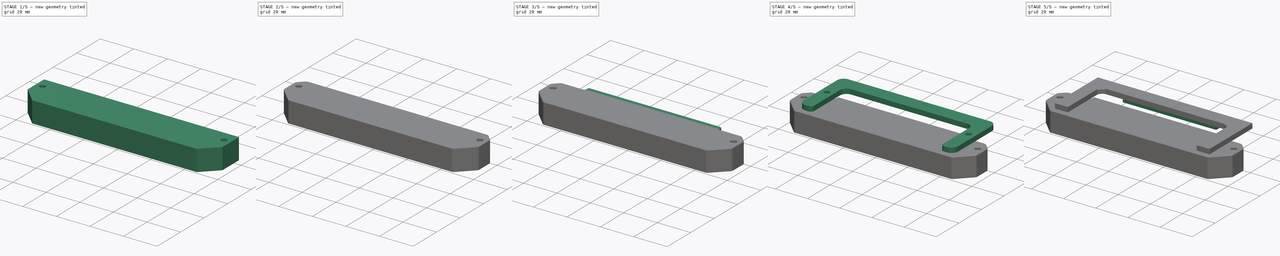
[diagram: build sequence overview — one tinted view per stage of 5, left to right]
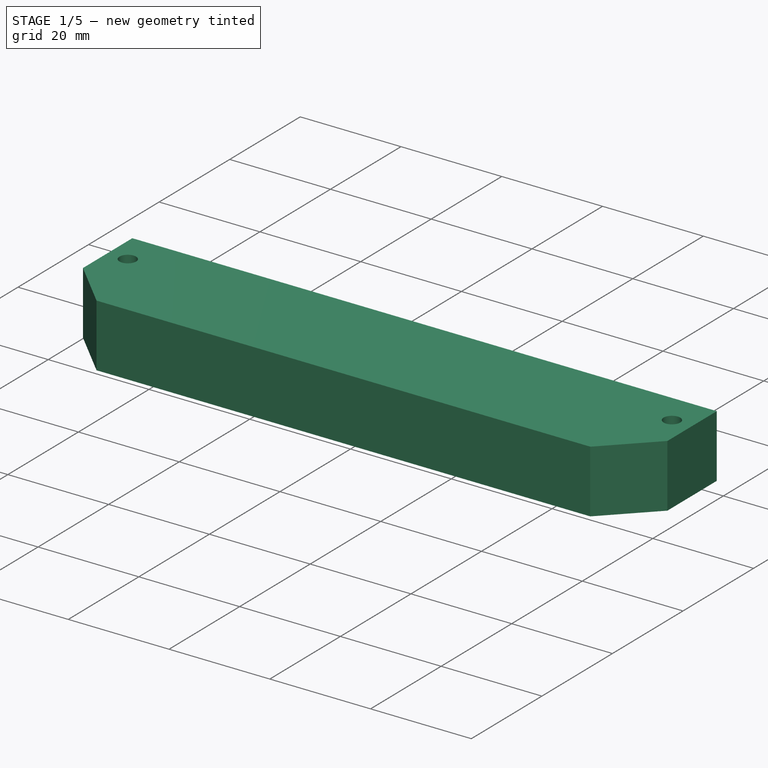
[diagram: stage 1 of 5 — iso view after this stage's code; geometry added in this stage tinted green]
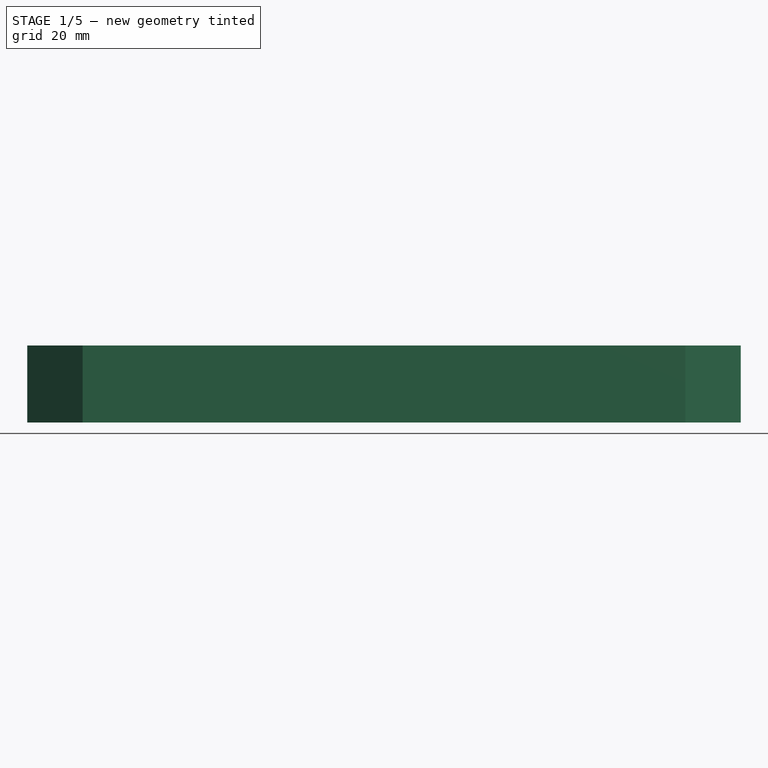
[diagram: stage 1 of 5 — front view after this stage's code; geometry added in this stage tinted green]
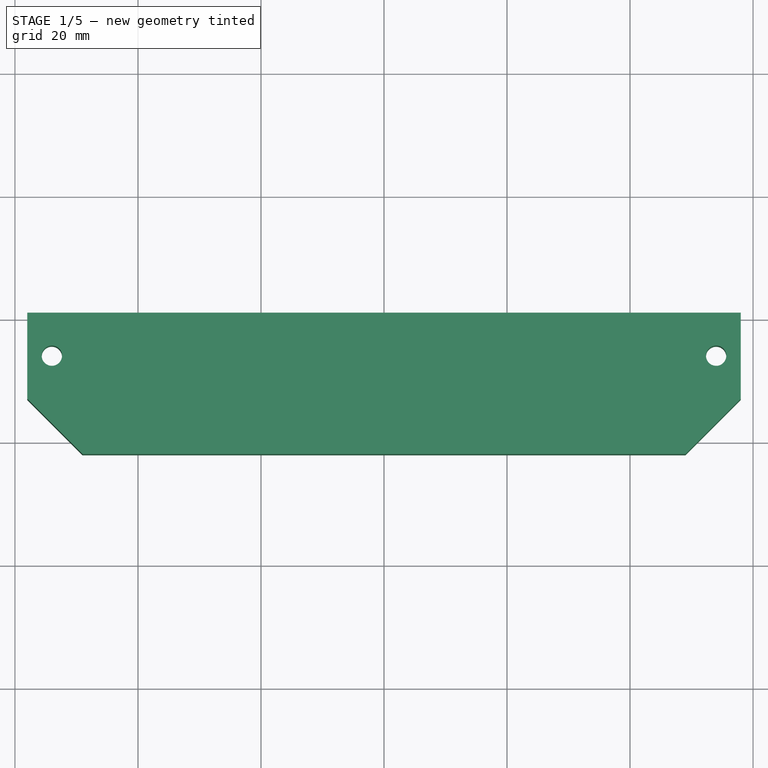
[diagram: stage 1 of 5 — top view after this stage's code; geometry added in this stage tinted green]
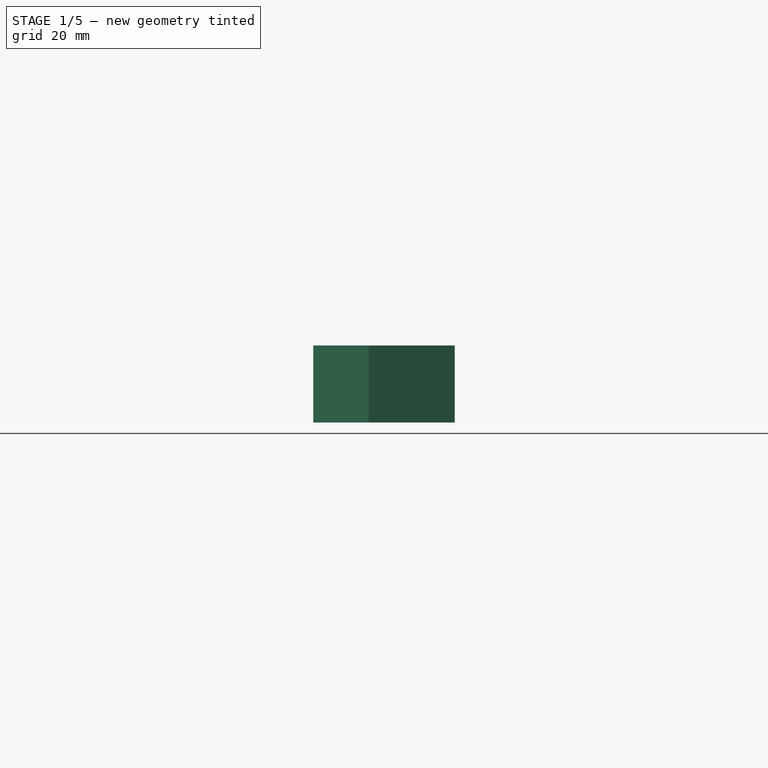
[diagram: stage 1 of 5 — right view after this stage's code; geometry added in this stage tinted green]
FCSTD DOCUMENT  (FreeCAD 0.19R24291 (Git))
Label: fuse-box-mounter-smd
License: All rights reserved
LicenseURL: http://en.wikipedia.org/wiki/All_rights_reserved
objects: Sketcher::SketchObject×7, PartDesign::Fillet×7, PartDesign::Pad×4, PartDesign::Chamfer×4, PartDesign::Body×4, PartDesign::Pocket×3, PartDesign::FeatureBase×2, App::Part×2, Part::Feature×1
note: 50 computed .brp shape members not serialized (recipe doc carries the construction recipe); baked Part::Feature solids carry a one-line shape summary decoded from their .brp

FEATURE [PartDesign::Body] Body  label="bottom"
  Group = -> [Sketch,Pad,Sketch001,Sketch004,Pocket,Fillet,Fillet001,Chamfer]
  Origin = -> Origin
  Tip = -> Chamfer
FEATURE [PartDesign::Pad] Pad002
  Direction = (1,1,1)
  Length = 12.5
  Length2 = 100
  Profile = -> Sketch003
  Reversed = true
  Type = 0
FEATURE [Sketcher::SketchObject] Sketch005
  FullyConstrained = true
  MapMode = 5
  Placement = pos=(0,0,-12.5) rot=(1,0,0;3.14159rad)
  Support = -> [Pad002]
  sketch-geometry (4):
    g0: LineSegment StartX=-48.15 StartY=0 StartZ=0 EndX=48.15 EndY=0 EndZ=0
    g1: LineSegment StartX=48.15 StartY=0 StartZ=0 EndX=48.15 EndY=19.15 EndZ=0
    g2: LineSegment StartX=48.15 StartY=19.15 StartZ=0 EndX=-48.15 EndY=19.15 EndZ=0
    g3: LineSegment StartX=-48.15 StartY=19.15 StartZ=0 EndX=-48.15 EndY=0 EndZ=0
  constraints (12):
    c: Coincident(g0,g1)
    c: Coincident(g1,g2)
    c: Coincident(g2,g3)
    c: Coincident(g3,g0)
    c: Horizontal(g0)
    c: Horizontal(g2)
    c: Vertical(g1)
    c: Vertical(g3)
    c: PointOnObject(g0,g-1)
    c: DistanceX(g2,g2) = 96.3
    c: DistanceX(g2,g-1) = 48.15
    c: DistanceY(g-1,g2) = 19.15
FEATURE [PartDesign::Pocket] Pocket001
  BaseFeature = -> Pad002
  Length = 9.5
  Length2 = 100
  Profile = -> Sketch005
  Type = 0
FEATURE [PartDesign::Body] Pad001Body
  BaseFeature = -> Body
  Group = -> [BaseFeature]
  Origin = -> Origin003
  Tip = -> BaseFeature
FEATURE [App::Part] Part
  Group = -> [Pad001Body]
  Origin = -> Origin002
FEATURE [Sketcher::SketchObject] Sketch006
  FullyConstrained = true
  MapMode = 5
  Placement = pos=(0,1,0) rot=(0,0.707107,0.707107;3.14159rad)
  Support = -> [Pocket001]
  sketch-geometry (8):
    g0: LineSegment StartX=-48.15 StartY=-12.5 StartZ=0 EndX=48.15 EndY=-12.5 EndZ=0
    g1: LineSegment StartX=48.15 StartY=-12.5 StartZ=0 EndX=48.15 EndY=-4.5 EndZ=0
    g2: LineSegment StartX=-48.15 StartY=-4.5 StartZ=0 EndX=-48.15 EndY=-12.5 EndZ=0
    g3: LineSegment StartX=-48.15 StartY=-4.5 StartZ=0 EndX=-40.5 EndY=-4.5 EndZ=0
    g4: LineSegment StartX=-40.5 StartY=-4.5 StartZ=0 EndX=-40.5 EndY=-7.5 EndZ=0
    g5: LineSegment StartX=-40.5 StartY=-7.5 StartZ=0 EndX=40.5 EndY=-7.5 EndZ=0
    g6: LineSegment StartX=40.5 StartY=-7.5 StartZ=0 EndX=40.5 EndY=-4.5 EndZ=0
    g7: LineSegment StartX=40.5 StartY=-4.5 StartZ=0 EndX=48.15 EndY=-4.5 EndZ=0
  constraints (24):
    c: Coincident(g0,g1)
    c: Coincident(g2,g0)
    c: Horizontal(g0)
    c: Vertical(g1)
    c: Vertical(g2)
    c: DistanceX(g2,g1) = 96.3
    c: DistanceX(g2,g-1) = 48.15
    c: DistanceY(g0,g-1) = 12.5
    c: DistanceY(g2,g2) = 8
    c: Horizontal(g2,g1)
    c: Coincident(g2,g3)
    c: Horizontal(g3)
    c: Coincident(g3,g4)
    c: Vertical(g4)
    c: Coincident(g4,g5)
    c: Horizontal(g5)
    c: Coincident(g5,g6)
    c: Vertical(g6)
    c: Coincident(g6,g7)
    c: Coincident(g7,g1)
    c: Horizontal(g7)
    c: DistanceY(g0,g4) = 5
    c: DistanceX(g3,g-1) = 40.5
    c: DistanceX(g-1,g6) = 40.5
FEATURE [PartDesign::Pocket] Pocket002
  BaseFeature = -> Pocket001
  Length = 5
  Length2 = 100
  Profile = -> Sketch006
  Type = 0
FEATURE [PartDesign::Chamfer] Chamfer001
  Angle = 45
  Base = -> Pocket002 [Edge18,Edge44]
  BaseFeature = -> Pocket002
  ChamferType = 0
  FlipDirection = false
  Size = 9
  Size2 = 1
  SupportTransform = false
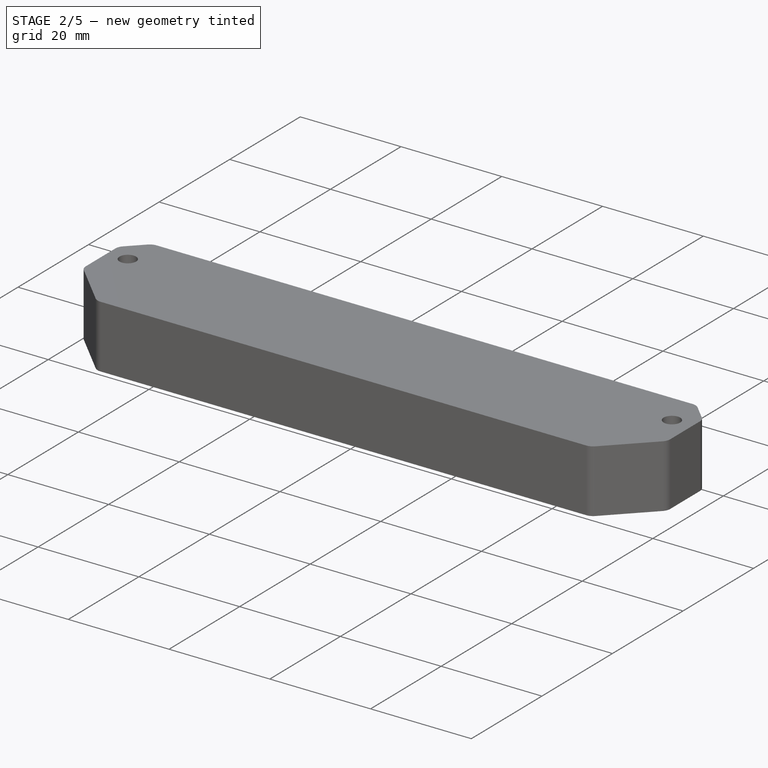
[diagram: stage 2 of 5 — iso view after this stage's code; geometry added in this stage tinted green]
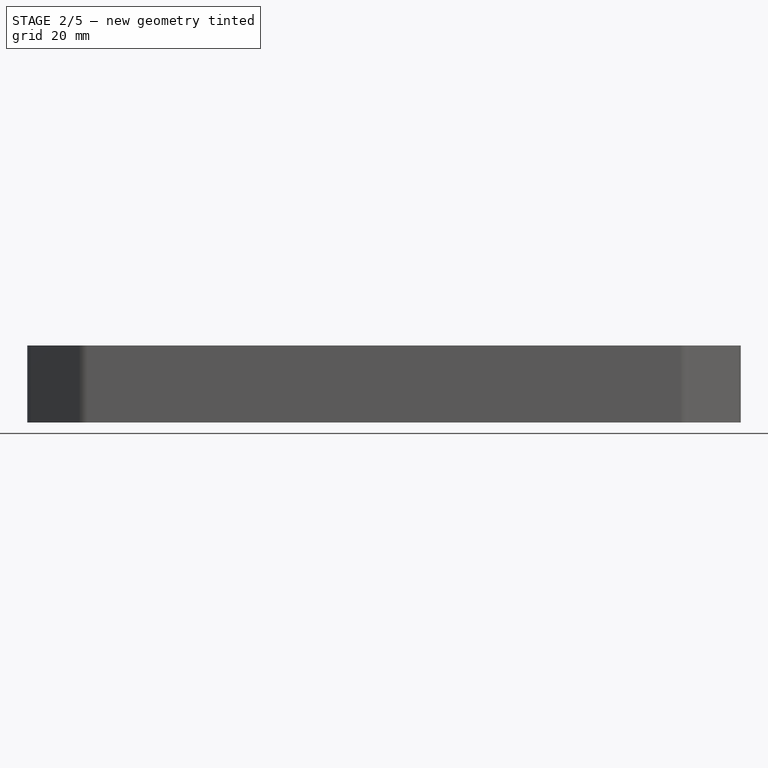
[diagram: stage 2 of 5 — front view after this stage's code; geometry added in this stage tinted green]
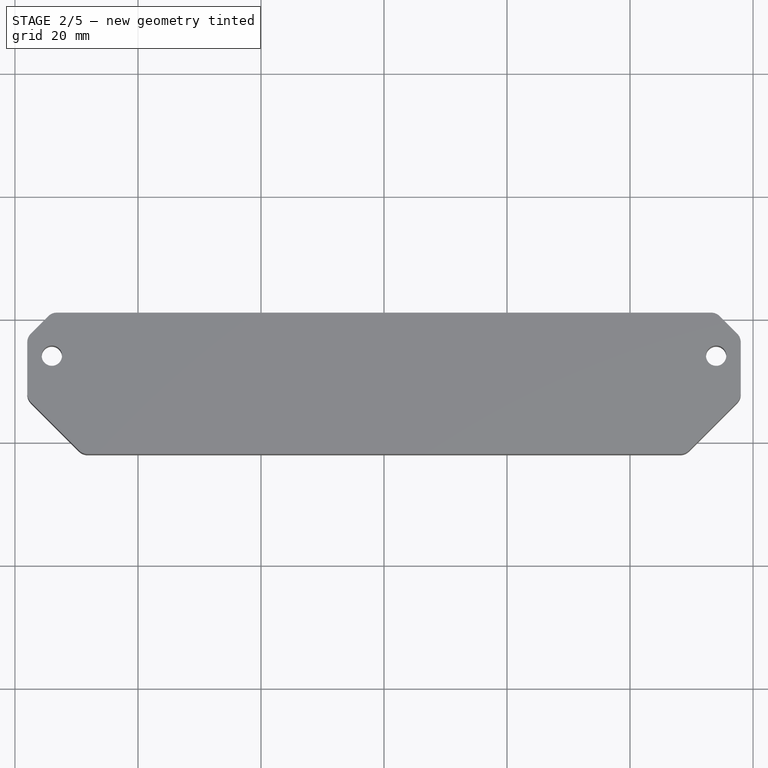
[diagram: stage 2 of 5 — top view after this stage's code; geometry added in this stage tinted green]
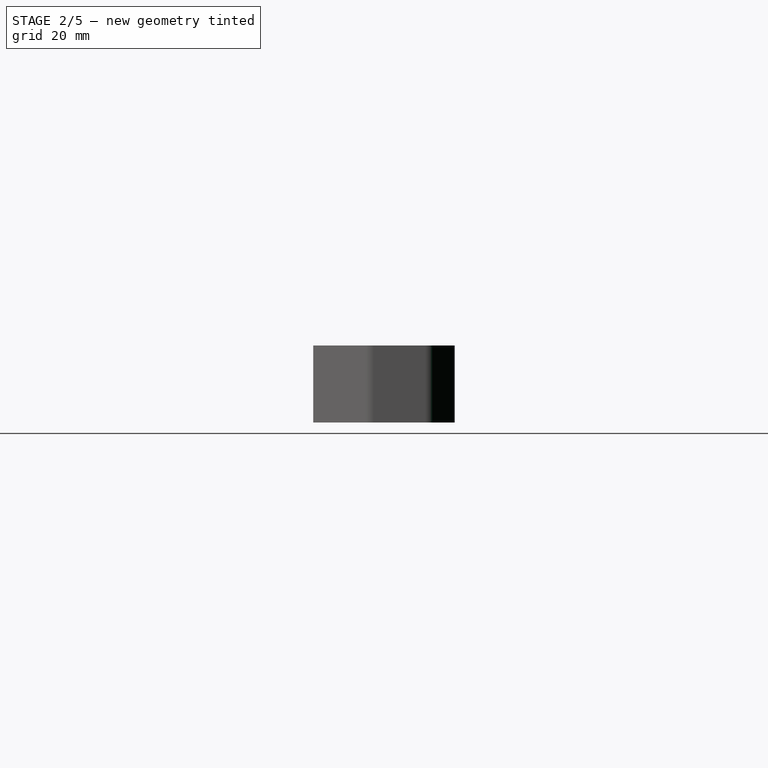
[diagram: stage 2 of 5 — right view after this stage's code; geometry added in this stage tinted green]
FEATURE [PartDesign::Fillet] Fillet002
  Base = -> Chamfer001 [Edge58,Edge57]
  BaseFeature = -> Chamfer001
  Radius = 4
  SupportTransform = false
FEATURE [PartDesign::Chamfer] Chamfer002
  Angle = 45
  Base = -> Fillet002 [Edge34,Edge41]
  BaseFeature = -> Fillet002
  ChamferType = 0
  FlipDirection = false
  Size = 4
  Size2 = 1
  SupportTransform = false
FEATURE [PartDesign::Fillet] Fillet003
  Base = -> Chamfer002 [Edge23,Edge53,Edge49,Edge45,Edge40,Edge36,Edge32,Edge22]
  BaseFeature = -> Chamfer002
  Radius = 2
  SupportTransform = false
FEATURE [PartDesign::Fillet] Fillet004
  Base = -> Fillet003 [Edge96,Edge97]
  BaseFeature = -> Fillet003
  Radius = 1
  Refine = true
  SupportTransform = false
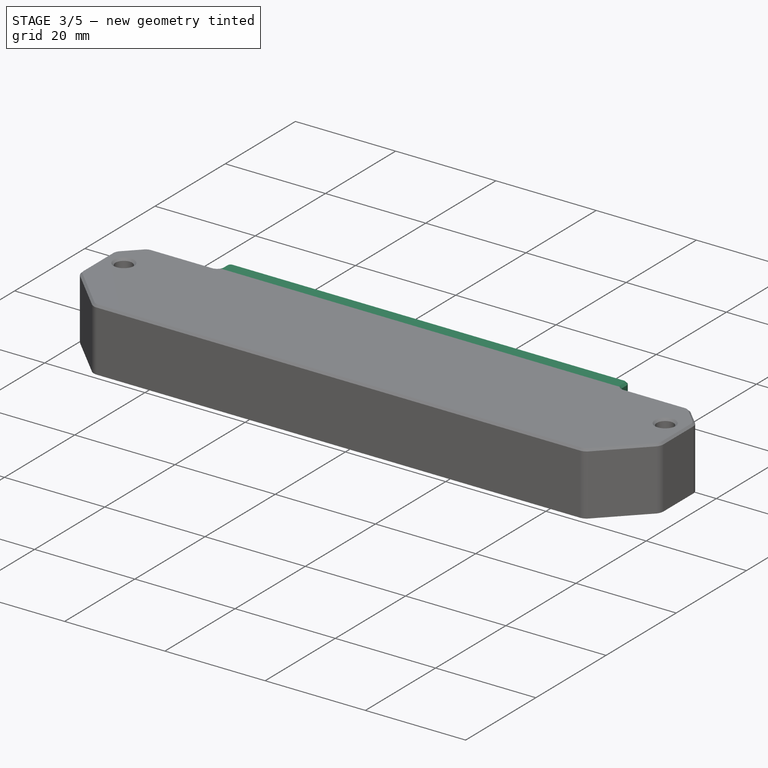
[diagram: stage 3 of 5 — iso view after this stage's code; geometry added in this stage tinted green]
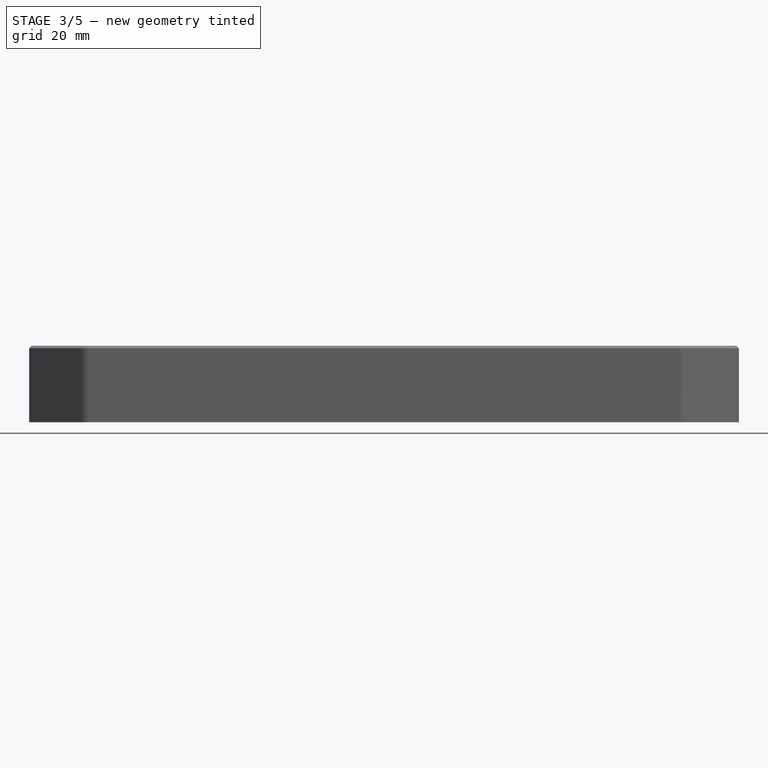
[diagram: stage 3 of 5 — front view after this stage's code; geometry added in this stage tinted green]
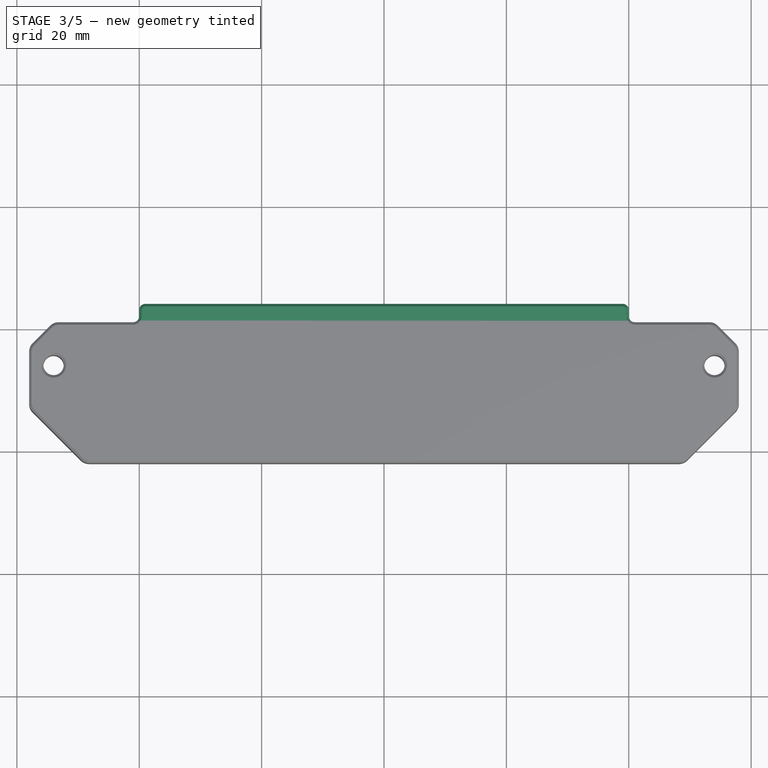
[diagram: stage 3 of 5 — top view after this stage's code; geometry added in this stage tinted green]
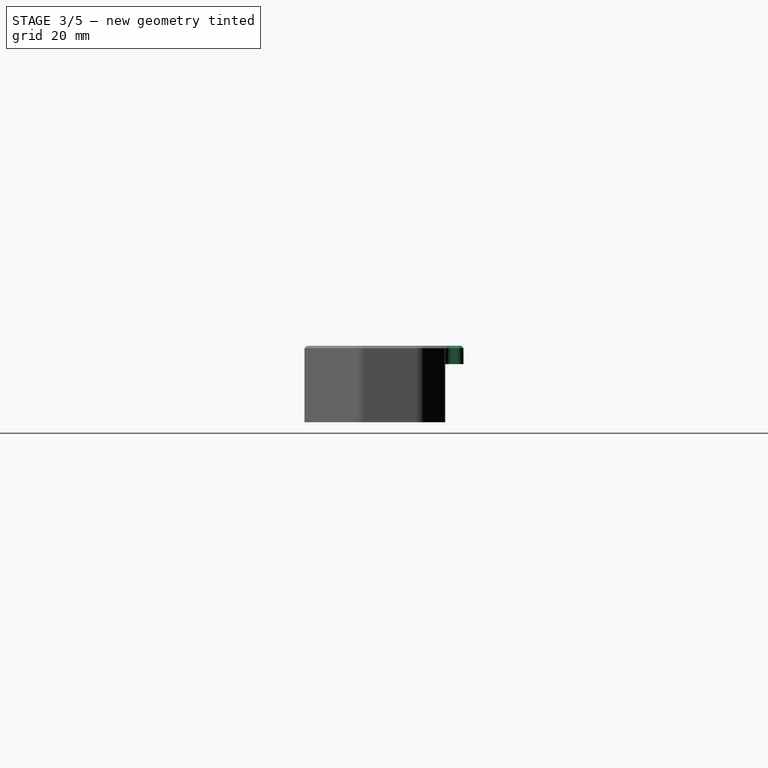
[diagram: stage 3 of 5 — right view after this stage's code; geometry added in this stage tinted green]
FEATURE [PartDesign::Fillet] Fillet005
  Base = -> Fillet004 [Edge53,Edge48,Edge20,Edge16]
  BaseFeature = -> Fillet004
  Radius = 1.5
  SupportTransform = false
FEATURE [PartDesign::Body] Pad001Body001
  BaseFeature = -> Body
  Group = -> [BaseFeature001]
  Origin = -> Origin005
  Tip = -> BaseFeature001
FEATURE [App::Part] Part001
  Group = -> [Pad001Body001]
  Origin = -> Origin004
FEATURE [Sketcher::SketchObject] Sketch007
  FullyConstrained = true
  MapMode = 5
  Placement = pos=(0,1,0) rot=(0,0.707107,0.707107;3.14159rad)
  Support = -> [Fillet005]
  sketch-geometry (4):
    g0: LineSegment StartX=-40 StartY=0 StartZ=0 EndX=40 EndY=0 EndZ=0
    g1: LineSegment StartX=40 StartY=0 StartZ=0 EndX=40 EndY=-3 EndZ=0
    g2: LineSegment StartX=40 StartY=-3 StartZ=0 EndX=-40 EndY=-3 EndZ=0
    g3: LineSegment StartX=-40 StartY=-3 StartZ=0 EndX=-40 EndY=0 EndZ=0
  constraints (12):
    c: Coincident(g0,g1)
    c: Coincident(g1,g2)
    c: Coincident(g2,g3)
    c: Coincident(g3,g0)
    c: Horizontal(g0)
    c: Horizontal(g2)
    c: Vertical(g1)
    c: Vertical(g3)
    c: PointOnObject(g0,g-1)
    c: DistanceY(g1,g1) = 3
    c: DistanceX(g2,g2) = 80
    c: DistanceX(g0,g-1) = 40
FEATURE [PartDesign::Pad] Pad003
  BaseFeature = -> Fillet005
  Direction = (1,1,1)
  Length = 3
  Length2 = 100
  Profile = -> Sketch007
  Refine = true
  Type = 0
FEATURE [PartDesign::Fillet] Fillet006
  Base = -> Pad003 [Edge63,Edge10,Edge59,Edge8]
  BaseFeature = -> Pad003
  Radius = 1
  SupportTransform = false
FEATURE [PartDesign::Chamfer] Chamfer003
  Angle = 45
  Base = -> Fillet006 [Face2,Edge78,Edge79]
  BaseFeature = -> Fillet006
  ChamferType = 0
  FlipDirection = false
  Size = 0.4
  Size2 = 1
  SupportTransform = false
FEATURE [PartDesign::Body] Body001  label="top"
  Group = -> [Sketch003,Pad002,Sketch005,Pocket001,Sketch006,Pocket002,Chamfer001,Fillet002,Chamfer002,Fillet003,Fillet004,Fillet005,Sketch007,Pad003,Fillet006,Chamfer003]
  Origin = -> Origin001
  Placement = pos=(0,0,12.5) rot=(0,0,1;0rad)
  Tip = -> Chamfer003
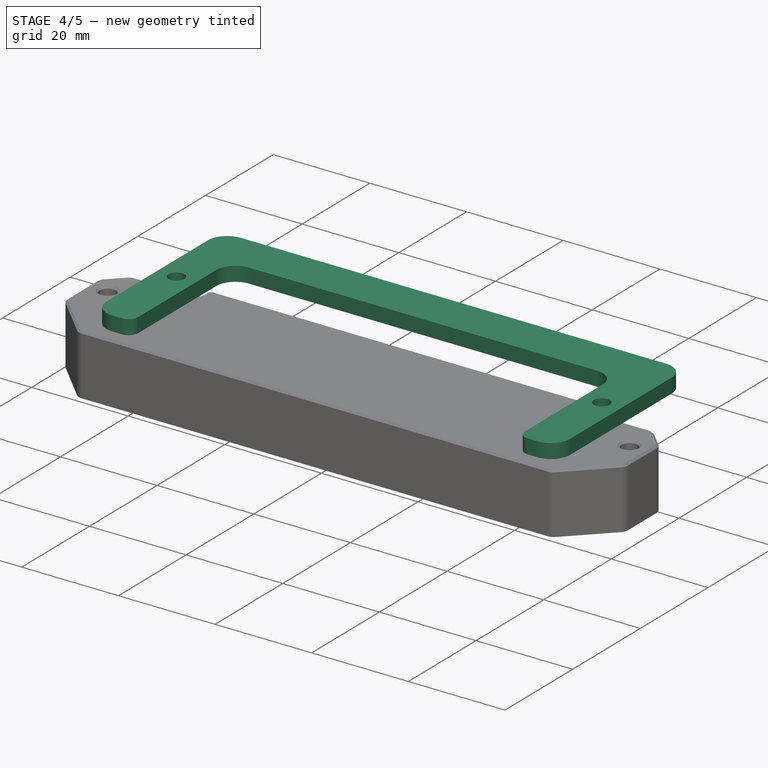
[diagram: stage 4 of 5 — iso view after this stage's code; geometry added in this stage tinted green]
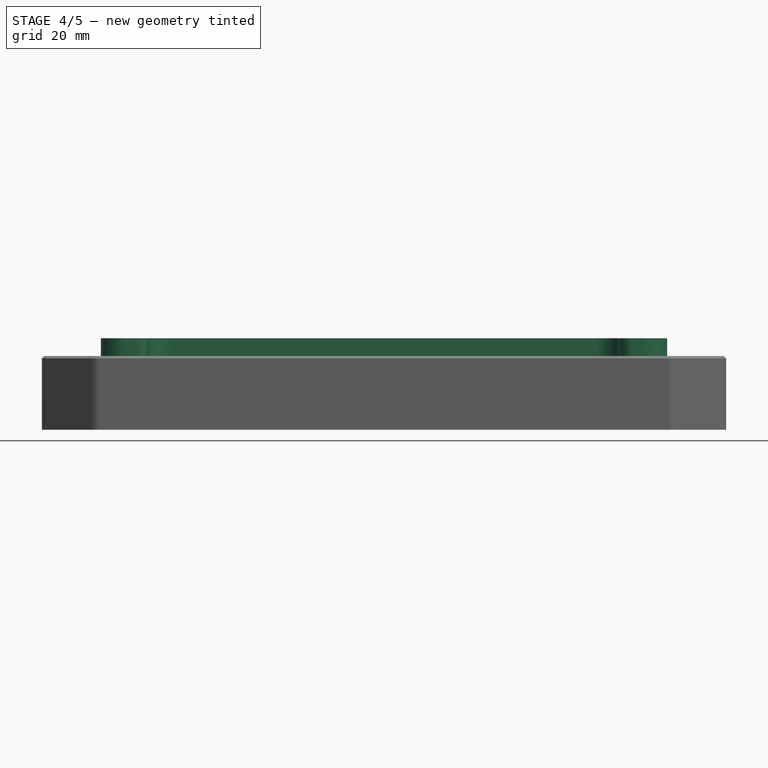
[diagram: stage 4 of 5 — front view after this stage's code; geometry added in this stage tinted green]
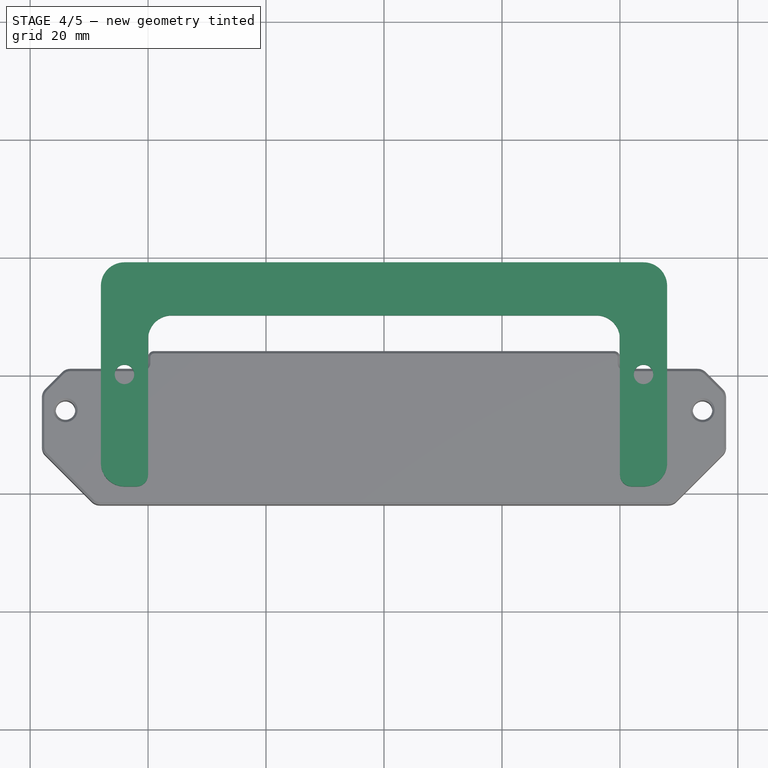
[diagram: stage 4 of 5 — top view after this stage's code; geometry added in this stage tinted green]
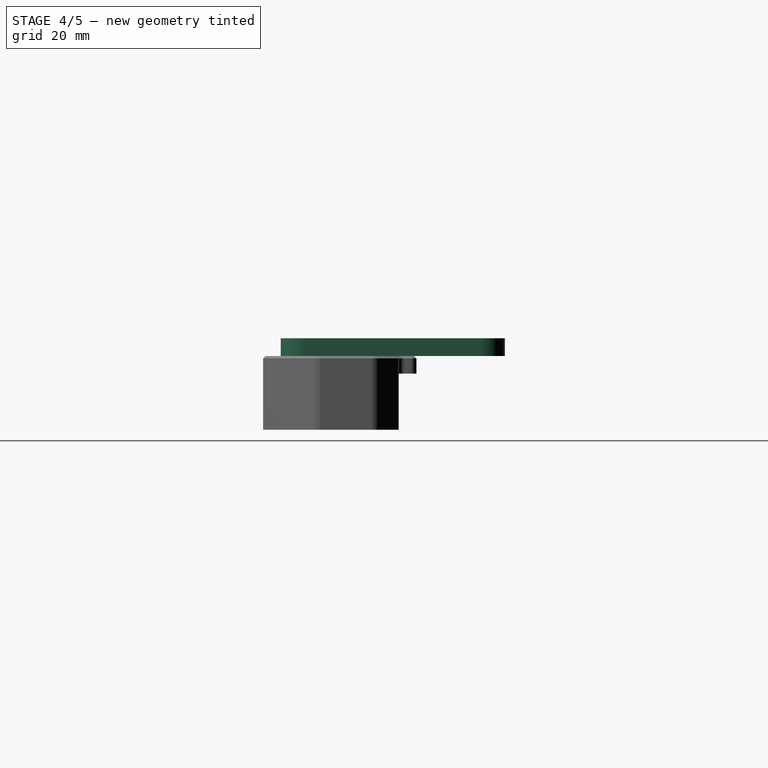
[diagram: stage 4 of 5 — right view after this stage's code; geometry added in this stage tinted green]
FEATURE [Part::Feature] Part__Feature  label="pcb"
  Placement = pos=(0,0,3) rot=(0,0,1;0rad)
  shape: bbox 96 x 38 x 1.6 mm, 72 faces (baked)
FEATURE [Sketcher::SketchObject] Sketch
  FullyConstrained = true
  MapMode = 5
  Support = -> [XY_Plane]
  sketch-geometry (8):
    g0: LineSegment StartX=-48 StartY=-19 StartZ=0 EndX=-40 EndY=-19 EndZ=0
    g1: LineSegment StartX=-40 StartY=-19 StartZ=0 EndX=-40 EndY=10 EndZ=0
    g2: LineSegment StartX=-40 StartY=10 StartZ=0 EndX=40 EndY=10 EndZ=0
    g3: LineSegment StartX=40 StartY=10 StartZ=0 EndX=40 EndY=-19 EndZ=0
    g4: LineSegment StartX=40 StartY=-19 StartZ=0 EndX=48 EndY=-19 EndZ=0
    g5: LineSegment StartX=48 StartY=-19 StartZ=0 EndX=48 EndY=19 EndZ=0
    g6: LineSegment StartX=48 StartY=19 StartZ=0 EndX=-48 EndY=19 EndZ=0
    g7: LineSegment StartX=-48 StartY=19 StartZ=0 EndX=-48 EndY=-19 EndZ=0
  constraints (24):
    c: Horizontal(g0)
    c: Coincident(g0,g1)
    c: Vertical(g1)
    c: Coincident(g1,g2)
    c: Horizontal(g2)
    c: Coincident(g2,g3)
    c: Vertical(g3)
    c: Coincident(g3,g4)
    c: Coincident(g4,g5)
    c: Vertical(g5)
    c: Coincident(g5,g6)
    c: Horizontal(g6)
    c: Coincident(g6,g7)
    c: Coincident(g7,g0)
    c: Vertical(g7)
    c: DistanceX(g6,g6) = 96
    c: DistanceX(g6,g-1) = 48
    c: DistanceY(g0,g-1) = 19
    c: DistanceY(g-1,g1) = 10
    c: DistanceX(g0,g0) = 8
    c: DistanceX(g4,g4) = 8
    c: Horizontal(g4)
    c: Horizontal(g0,g3)
    c: DistanceY(g-1,g6) = 19
FEATURE [PartDesign::Pad] Pad
  Direction = (1,1,1)
  Length = 3
  Length2 = 100
  Profile = -> Sketch
  Type = 0
FEATURE [Sketcher::SketchObject] Sketch003
  FullyConstrained = true
  MapMode = 5
  Support = -> [XY_Plane001]
  sketch-geometry (7):
    g0: Circle CenterX=-54 CenterY=-6 CenterZ=0 NormalX=0 NormalY=0 NormalZ=1 AngleXU=0 Radius=1.65
    g1: Circle CenterX=54 CenterY=-6 CenterZ=0 NormalX=0 NormalY=0 NormalZ=1 AngleXU=0 Radius=1.65
    g2: LineSegment StartX=-58 StartY=1 StartZ=0 EndX=58 EndY=1 EndZ=0
    g3: LineSegment StartX=58 StartY=1 StartZ=0 EndX=58 EndY=-22 EndZ=0
    g4: LineSegment StartX=58 StartY=-22 StartZ=0 EndX=-58 EndY=-22 EndZ=0
    g5: LineSegment StartX=-58 StartY=-22 StartZ=0 EndX=-58 EndY=1 EndZ=0
    g6: Circle CenterX=-54 CenterY=-6 CenterZ=0 NormalX=0 NormalY=0 NormalZ=1 AngleXU=0 Radius=4
  constraints (20):
    c: Horizontal(g1,g0)
    c: DistanceY(g0,g-1) = 6
    c: DistanceX(g0,g1) = 108
    c: DistanceX(g0,g-1) = 54
    c: Equal(g0,g1)
    c: Radius(g0) = 1.65
    c: Coincident(g2,g3)
    c: Coincident(g3,g4)
    c: Coincident(g4,g5)
    c: Coincident(g5,g2)
    c: Horizontal(g2)
    c: Horizontal(g4)
    c: Vertical(g3)
    c: Vertical(g5)
    c: DistanceX(g2,g0) = 4
    c: DistanceX(g1,g2) = 4
    c: DistanceY(g5,g5) = 23
    c: Coincident(g6,g0)
    c: Radius(g6) = 4
    c: DistanceY(g-1,g2) = 1
FEATURE [Sketcher::SketchObject] Sketch004
  FullyConstrained = true
  MapMode = 5
  Placement = pos=(0,0,3) rot=(0,0,1;0rad)
  Support = -> [Pad]
  sketch-geometry (2):
    g0: Circle CenterX=-44 CenterY=0 CenterZ=0 NormalX=0 NormalY=0 NormalZ=1 AngleXU=0 Radius=1.65
    g1: Circle CenterX=44 CenterY=0 CenterZ=0 NormalX=0 NormalY=0 NormalZ=1 AngleXU=0 Radius=1.65
  constraints (6):
    c: PointOnObject(g0,g-1)
    c: PointOnObject(g1,g-1)
    c: DistanceX(g-1,g1) = 44
    c: DistanceX(g0,g-1) = 44
    c: Equal(g0,g1)
    c: Radius(g0) = 1.65
FEATURE [PartDesign::Pocket] Pocket
  BaseFeature = -> Pad
  Length = 5
  Length2 = 100
  Profile = -> Sketch004
  Type = 1
FEATURE [PartDesign::Fillet] Fillet
  Base = -> Pocket [Edge8,Edge26,Edge27,Edge1,Edge5,Edge25]
  BaseFeature = -> Pocket
  Radius = 4
  SupportTransform = false
FEATURE [PartDesign::Fillet] Fillet001
  Base = -> Fillet [Edge44,Edge3]
  BaseFeature = -> Fillet
  Radius = 2
  SupportTransform = false
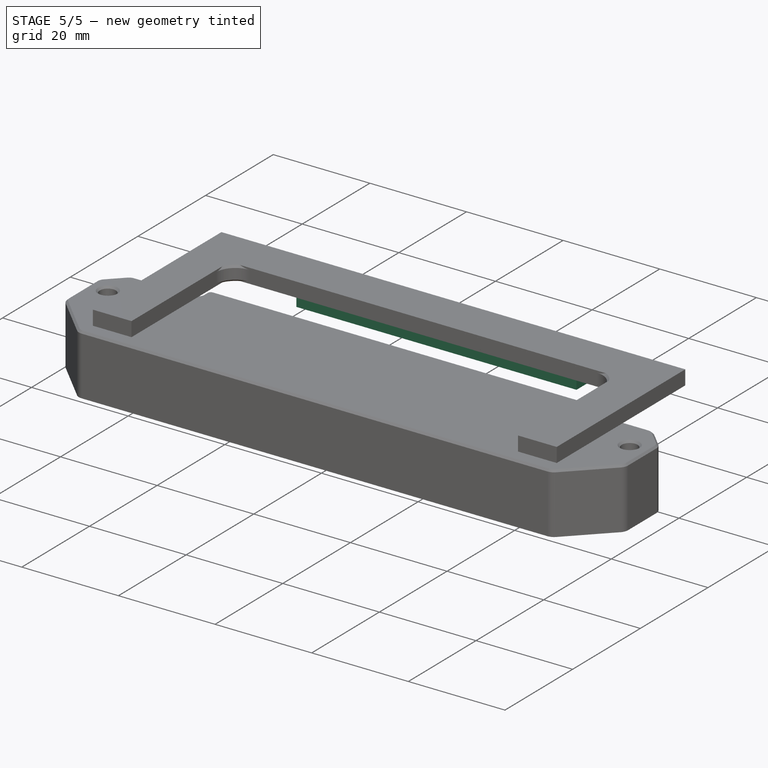
[diagram: stage 5 of 5 — iso view after this stage's code; geometry added in this stage tinted green]
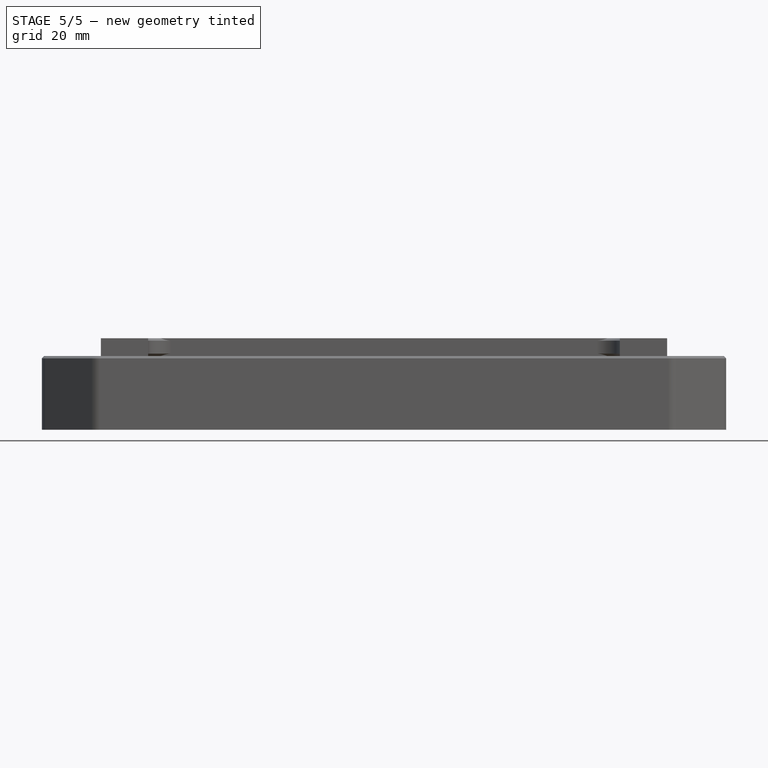
[diagram: stage 5 of 5 — front view after this stage's code; geometry added in this stage tinted green]
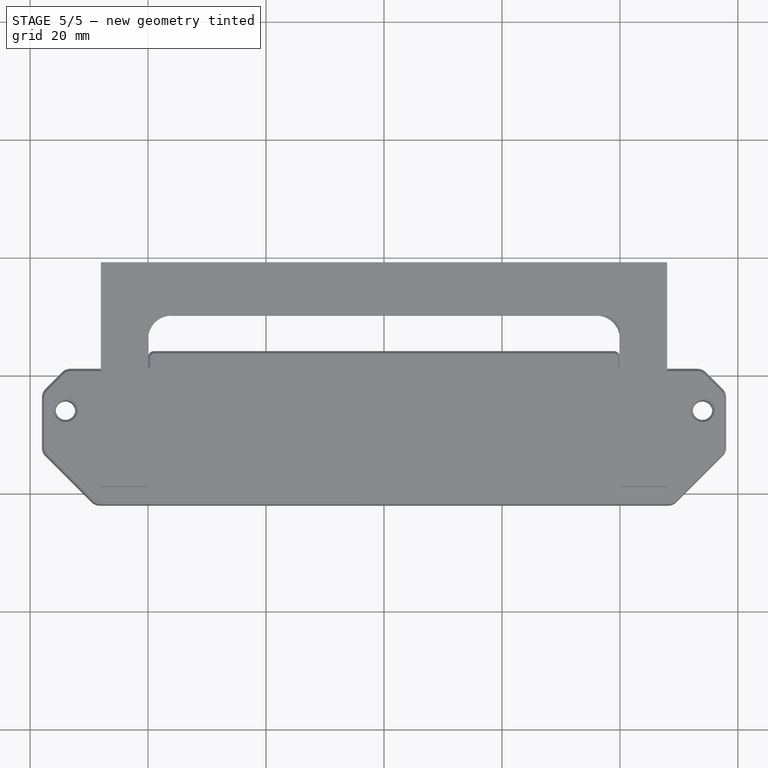
[diagram: stage 5 of 5 — top view after this stage's code; geometry added in this stage tinted green]
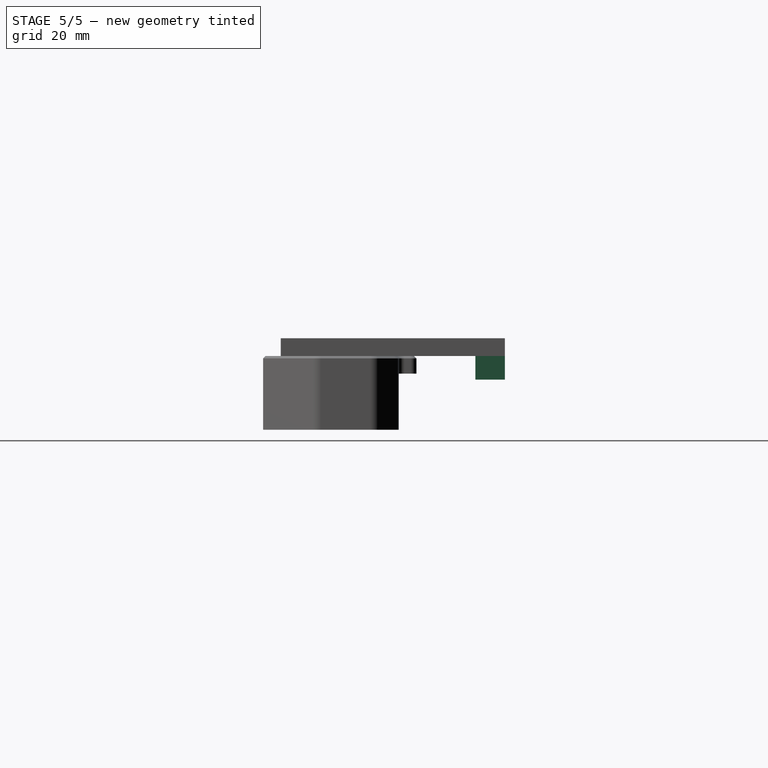
[diagram: stage 5 of 5 — right view after this stage's code; geometry added in this stage tinted green]
FEATURE [Sketcher::SketchObject] Sketch001
  ExternalGeometry = -> [Pad]
  FullyConstrained = true
  MapMode = 5
  Placement = pos=(0,0,0) rot=(1,0,0;3.14159rad)
  Support = -> [Pad]
  sketch-geometry (4):
    g0: LineSegment StartX=-29 StartY=-19 StartZ=0 EndX=29 EndY=-19 EndZ=0
    g1: LineSegment StartX=29 StartY=-19 StartZ=0 EndX=29 EndY=-14 EndZ=0
    g2: LineSegment StartX=29 StartY=-14 StartZ=0 EndX=-29 EndY=-14 EndZ=0
    g3: LineSegment StartX=-29 StartY=-14 StartZ=0 EndX=-29 EndY=-19 EndZ=0
  constraints (12):
    c: Coincident(g0,g1)
    c: Coincident(g1,g2)
    c: Coincident(g2,g3)
    c: Coincident(g3,g0)
    c: Horizontal(g0)
    c: Horizontal(g2)
    c: Vertical(g1)
    c: Vertical(g3)
    c: PointOnObject(g0,g-3)
    c: DistanceX(g2,g2) = 58
    c: DistanceX(g2,g-1) = 29
    c: DistanceY(g3,g3) = 5
FEATURE [PartDesign::Pad] Pad001
  BaseFeature = -> Pad
  Direction = (1,1,1)
  Length = 4
  Length2 = 100
  Profile = -> Sketch001
  Type = 0
FEATURE [PartDesign::Chamfer] Chamfer
  Angle = 45
  Base = -> Fillet001 [Face5,Face2]
  BaseFeature = -> Fillet001
  ChamferType = 0
  FlipDirection = false
  Size = 0.4
  Size2 = 1
  SupportTransform = false
FEATURE [PartDesign::FeatureBase] BaseFeature
  BaseFeature = -> Body
FEATURE [PartDesign::FeatureBase] BaseFeature001
  BaseFeature = -> Body
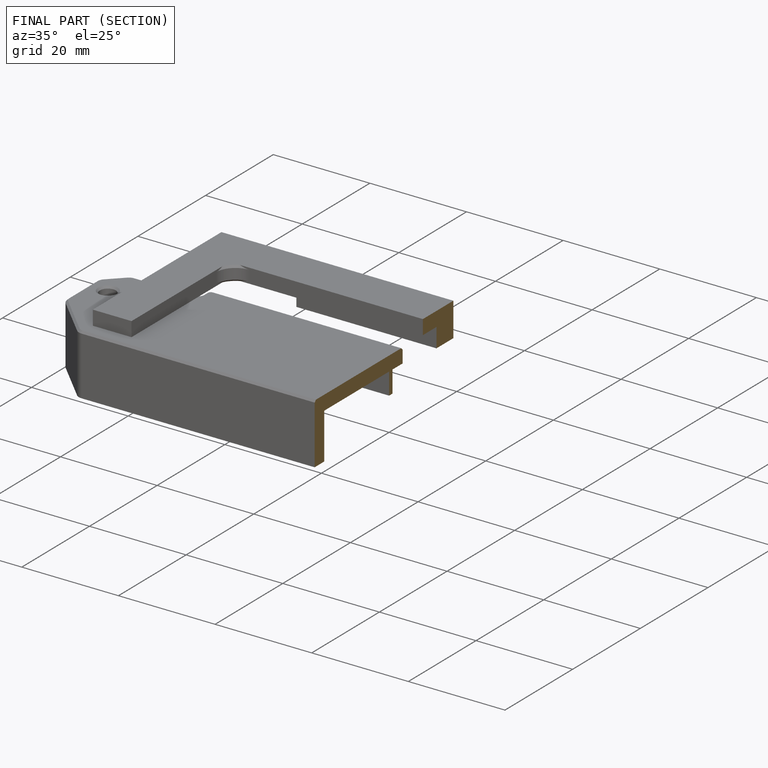
[diagram: finished part — half-section view (interior)]
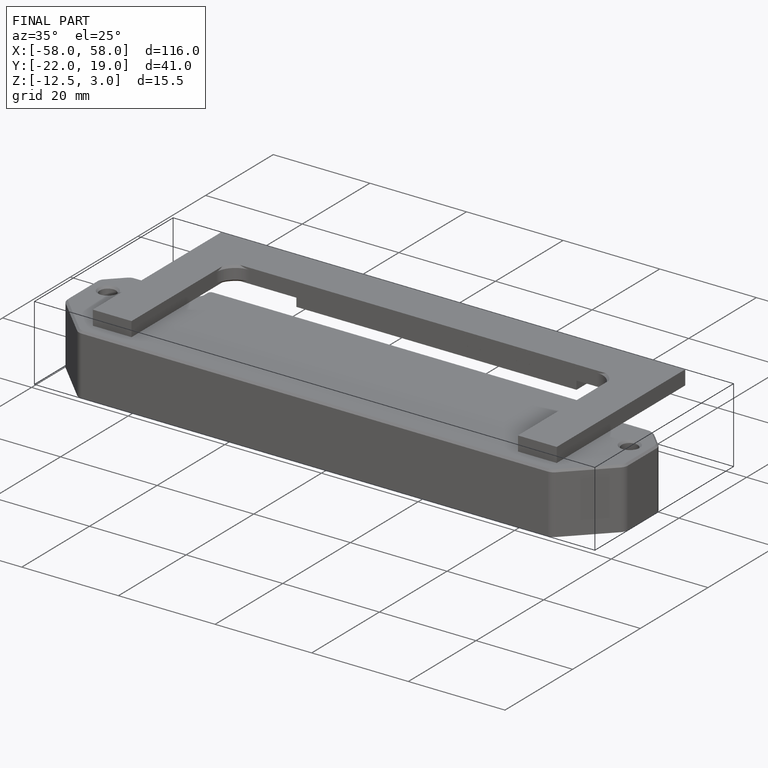
[diagram: finished part — iso view with bounding-box wireframe]
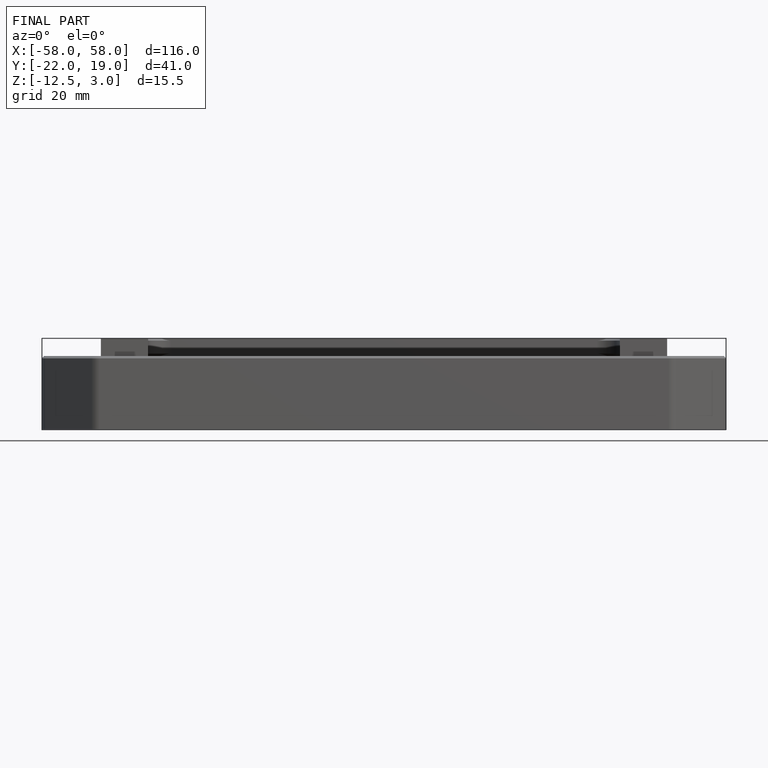
[diagram: finished part — front view with bounding-box wireframe]
